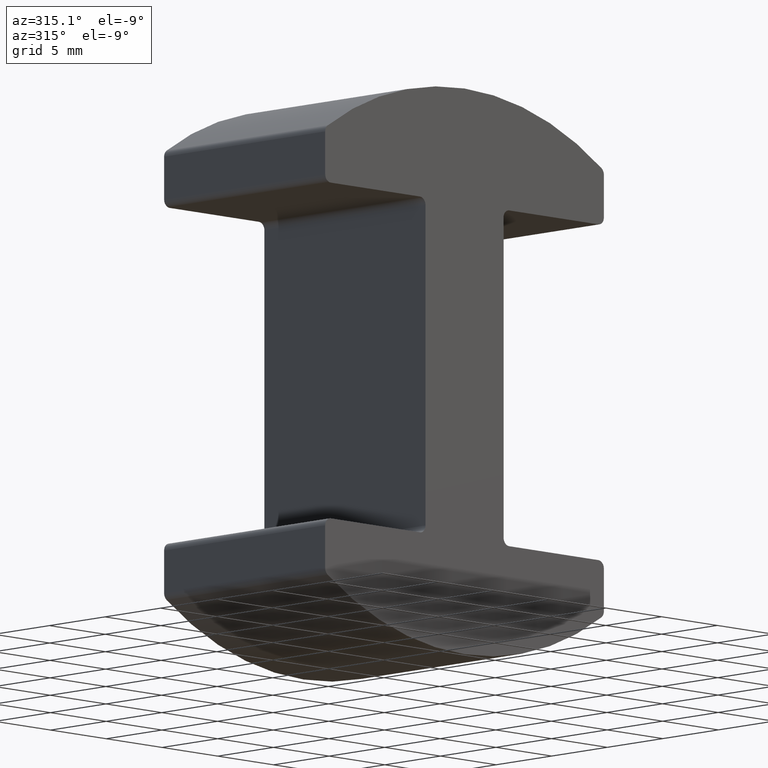
[diagram: clean part render]
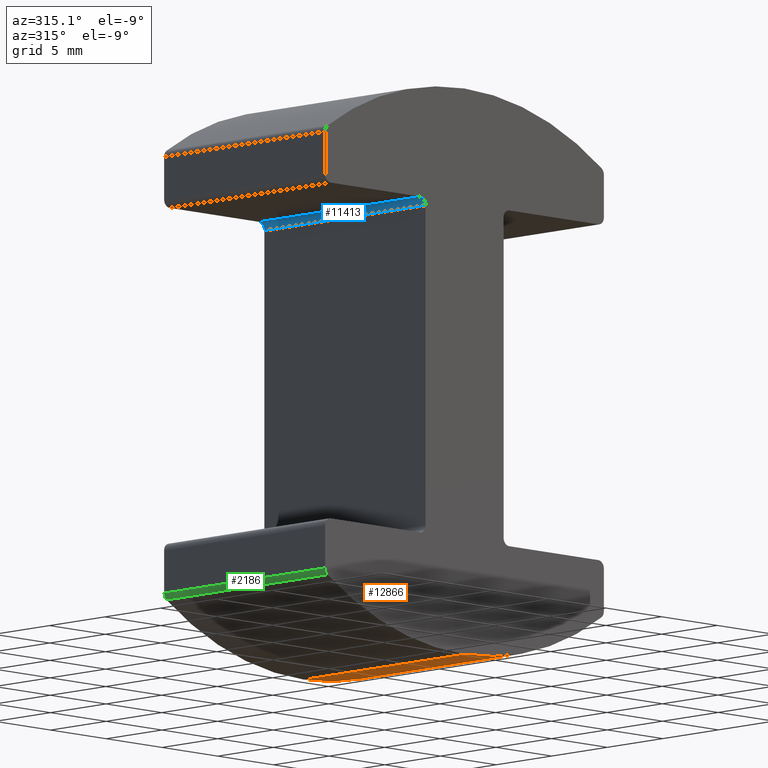
[diagram: same view with three faces highlighted in distinct colors, each labeled with its STEP entity id]
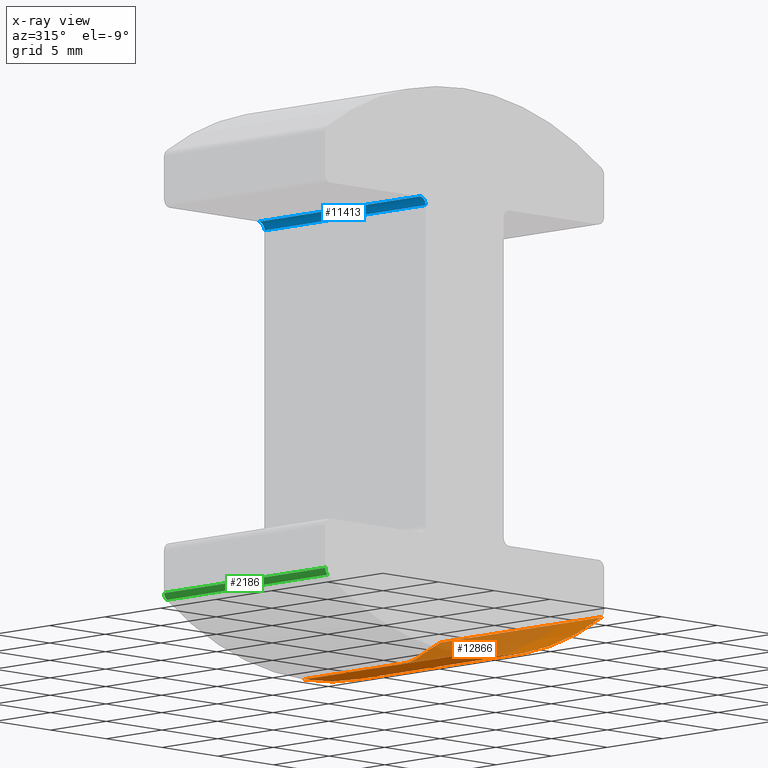
[diagram: x-ray of the same camera — body ghosted, the three highlighted faces saturated]
A machine part, auxiliary view with three faces highlighted in distinct colors.
The next image is the same camera in x-ray (body ghosted, the three faces saturated) — at least one of them is partly hidden behind the body in this view.
Their STEP definitions:

[orange] entity #12866 — the highlighted cylindrical surface (partial cylindrical patch) has radius 22 mm, axis along (-0, -1, -0).
#224 = FACE_OUTER_BOUND ( 'NONE', #13106, .T. ) ;
#270 = VECTOR ( 'NONE', #11596, 1000.000000000000000 ) ;
#1384 = CARTESIAN_POINT ( 'NONE',  ( -3.857428891191241400E-040, -7.250000000000000000, 3.803866990231672000 ) ) ;
#1422 = EDGE_CURVE ( 'NONE', #4289, #2642, #2972, .T. ) ;
#2011 = CARTESIAN_POINT ( 'NONE',  ( -3.857428891191241400E-040, 7.250000000000000000, 3.803866990231672000 ) ) ;
#2630 = CIRCLE ( 'NONE', #6619, 22.00000000000000000 ) ;
#2642 = VERTEX_POINT ( 'NONE', #5754 ) ;
#2744 = LINE ( 'NONE', #11722, #11799 ) ;
#2972 = LINE ( 'NONE', #6457, #270 ) ;
#3037 = DIRECTION ( 'NONE',  ( 0.0000000000000000000, 0.0000000000000000000, -1.000000000000000000 ) ) ;
#3122 = EDGE_CURVE ( 'NONE', #13092, #2642, #2630, .T. ) ;
#3496 = AXIS2_PLACEMENT_3D ( 'NONE', #2011, #12117, #3037 ) ;
#3527 = CIRCLE ( 'NONE', #3496, 22.00000000000000000 ) ;
#4289 = VERTEX_POINT ( 'NONE', #12520 ) ;
#5402 = CYLINDRICAL_SURFACE ( 'NONE', #10764, 22.00000000000000000 ) ;
#5461 = DIRECTION ( 'NONE',  ( 0.0000000000000000000, 0.0000000000000000000, -1.000000000000000000 ) ) ;
#5634 = EDGE_CURVE ( 'NONE', #6374, #4289, #3527, .T. ) ;
#5719 = ORIENTED_EDGE ( 'NONE', *, *, #12968, .F. ) ;
#5754 = CARTESIAN_POINT ( 'NONE',  ( 12.27906976744185900, -7.250000000000000000, -14.45056933758451500 ) ) ;
#6374 = VERTEX_POINT ( 'NONE', #10442 ) ;
#6446 = DIRECTION ( 'NONE',  ( 0.0000000000000000000, 0.0000000000000000000, -1.000000000000000000 ) ) ;
#6457 = CARTESIAN_POINT ( 'NONE',  ( 12.27906976744185700, 7.250000000000000000, -14.45056933758451100 ) ) ;
#6523 = ORIENTED_EDGE ( 'NONE', *, *, #1422, .T. ) ;
#6619 = AXIS2_PLACEMENT_3D ( 'NONE', #1384, #9196, #5461 ) ;
#6918 = DIRECTION ( 'NONE',  ( -0.0000000000000000000, -1.000000000000000000, -0.0000000000000000000 ) ) ;
#9196 = DIRECTION ( 'NONE',  ( -0.0000000000000000000, -1.000000000000000000, 0.0000000000000000000 ) ) ;
#9265 = ORIENTED_EDGE ( 'NONE', *, *, #3122, .F. ) ;
#10017 = ORIENTED_EDGE ( 'NONE', *, *, #5634, .T. ) ;
#10442 = CARTESIAN_POINT ( 'NONE',  ( -3.857428891191241400E-040, 7.250000000000000000, -18.19613300976832800 ) ) ;
#10764 = AXIS2_PLACEMENT_3D ( 'NONE', #12534, #12496, #6446 ) ;
#11596 = DIRECTION ( 'NONE',  ( -0.0000000000000000000, -1.000000000000000000, -0.0000000000000000000 ) ) ;
#11722 = CARTESIAN_POINT ( 'NONE',  ( -3.857428891191241400E-040, 7.250000000000000000, -18.19613300976832800 ) ) ;
#11799 = VECTOR ( 'NONE', #6918, 1000.000000000000000 ) ;
#12117 = DIRECTION ( 'NONE',  ( -0.0000000000000000000, -1.000000000000000000, 0.0000000000000000000 ) ) ;
#12429 = CARTESIAN_POINT ( 'NONE',  ( -3.857428891191241400E-040, -7.250000000000000000, -18.19613300976832800 ) ) ;
#12496 = DIRECTION ( 'NONE',  ( -0.0000000000000000000, -1.000000000000000000, -0.0000000000000000000 ) ) ;
#12520 = CARTESIAN_POINT ( 'NONE',  ( 12.27906976744185900, 7.250000000000000000, -14.45056933758451500 ) ) ;
#12534 = CARTESIAN_POINT ( 'NONE',  ( -3.857428891191241400E-040, 7.250000000000000000, 3.803866990231672000 ) ) ;
#12866 = ADVANCED_FACE ( 'NONE', ( #224 ), #5402, .T. ) ;
#12968 = EDGE_CURVE ( 'NONE', #6374, #13092, #2744, .T. ) ;
#13092 = VERTEX_POINT ( 'NONE', #12429 ) ;
#13106 = EDGE_LOOP ( 'NONE', ( #5719, #10017, #6523, #9265 ) ) ;

[blue] entity #11413 — the highlighted cylindrical surface (edge-blend (fillet) strip) has radius 0.5 mm, axis along (0, 1, 0).
#599 = CARTESIAN_POINT ( 'NONE',  ( -3.999999999999998200, 7.250000000000000000, 10.30000000000000400 ) ) ;
#630 = ORIENTED_EDGE ( 'NONE', *, *, #7300, .F. ) ;
#1425 = CARTESIAN_POINT ( 'NONE',  ( -3.999999999999998200, -7.250000000000000000, 10.80000000000000400 ) ) ;
#2031 = DIRECTION ( 'NONE',  ( 0.0000000000000000000, 1.000000000000000000, 0.0000000000000000000 ) ) ;
#2525 = LINE ( 'NONE', #1425, #11903 ) ;
#2660 = AXIS2_PLACEMENT_3D ( 'NONE', #599, #10816, #7795 ) ;
#3381 = VECTOR ( 'NONE', #8384, 1000.000000000000000 ) ;
#3550 = EDGE_LOOP ( 'NONE', ( #630, #6583, #3879, #10397 ) ) ;
#3579 = AXIS2_PLACEMENT_3D ( 'NONE', #5580, #3749, #7788 ) ;
#3749 = DIRECTION ( 'NONE',  ( 0.0000000000000000000, 1.000000000000000000, -0.0000000000000000000 ) ) ;
#3879 = ORIENTED_EDGE ( 'NONE', *, *, #5839, .F. ) ;
#4294 = EDGE_CURVE ( 'NONE', #5431, #7201, #8776, .T. ) ;
#4518 = CARTESIAN_POINT ( 'NONE',  ( -3.499999999999997800, -7.250000000000000000, 10.30000000000000400 ) ) ;
#5396 = CARTESIAN_POINT ( 'NONE',  ( -3.499999999999997800, 7.250000000000000000, 10.30000000000000400 ) ) ;
#5431 = VERTEX_POINT ( 'NONE', #4518 ) ;
#5580 = CARTESIAN_POINT ( 'NONE',  ( -3.999999999999998200, -7.250000000000000000, 10.30000000000000400 ) ) ;
#5839 = EDGE_CURVE ( 'NONE', #7101, #5431, #7980, .T. ) ;
#6217 = FACE_OUTER_BOUND ( 'NONE', #3550, .T. ) ;
#6583 = ORIENTED_EDGE ( 'NONE', *, *, #4294, .F. ) ;
#6696 = EDGE_CURVE ( 'NONE', #7652, #7101, #2525, .T. ) ;
#6872 = CARTESIAN_POINT ( 'NONE',  ( -3.999999999999998200, 7.250000000000000000, 10.80000000000000400 ) ) ;
#7101 = VERTEX_POINT ( 'NONE', #11118 ) ;
#7165 = CARTESIAN_POINT ( 'NONE',  ( -3.999999999999998200, 7.250000000000000000, 10.30000000000000400 ) ) ;
#7201 = VERTEX_POINT ( 'NONE', #10321 ) ;
#7300 = EDGE_CURVE ( 'NONE', #7201, #7652, #10137, .T. ) ;
#7652 = VERTEX_POINT ( 'NONE', #6872 ) ;
#7788 = DIRECTION ( 'NONE',  ( 0.0000000000000000000, 0.0000000000000000000, -1.000000000000000000 ) ) ;
#7795 = DIRECTION ( 'NONE',  ( 0.0000000000000000000, 0.0000000000000000000, -1.000000000000000000 ) ) ;
#7980 = CIRCLE ( 'NONE', #3579, 0.5000000000000004400 ) ;
#8066 = DIRECTION ( 'NONE',  ( 0.0000000000000000000, 0.0000000000000000000, 1.000000000000000000 ) ) ;
#8384 = DIRECTION ( 'NONE',  ( -0.0000000000000000000, 1.000000000000000000, -0.0000000000000000000 ) ) ;
#8776 = LINE ( 'NONE', #5396, #3381 ) ;
#9669 = DIRECTION ( 'NONE',  ( 0.0000000000000000000, -1.000000000000000000, 0.0000000000000000000 ) ) ;
#10137 = CIRCLE ( 'NONE', #2660, 0.5000000000000004400 ) ;
#10321 = CARTESIAN_POINT ( 'NONE',  ( -3.499999999999997800, 7.250000000000000000, 10.30000000000000400 ) ) ;
#10397 = ORIENTED_EDGE ( 'NONE', *, *, #6696, .F. ) ;
#10816 = DIRECTION ( 'NONE',  ( -0.0000000000000000000, -1.000000000000000000, 0.0000000000000000000 ) ) ;
#11118 = CARTESIAN_POINT ( 'NONE',  ( -3.999999999999998200, -7.250000000000000000, 10.80000000000000400 ) ) ;
#11413 = ADVANCED_FACE ( 'NONE', ( #6217 ), #12269, .F. ) ;
#11903 = VECTOR ( 'NONE', #9669, 1000.000000000000000 ) ;
#12111 = AXIS2_PLACEMENT_3D ( 'NONE', #7165, #2031, #8066 ) ;
#12269 = CYLINDRICAL_SURFACE ( 'NONE', #12111, 0.5000000000000004400 ) ;

[green] entity #2186 — the highlighted cylindrical surface (edge-blend (fillet) strip) has radius 0.5 mm, axis along (-0, -1, -0).
#191 = VERTEX_POINT ( 'NONE', #1241 ) ;
#207 = DIRECTION ( 'NONE',  ( -3.469446951953611000E-015, 0.0000000000000000000, -1.000000000000000000 ) ) ;
#277 = VERTEX_POINT ( 'NONE', #7551 ) ;
#391 = CARTESIAN_POINT ( 'NONE',  ( -12.00000000000000000, 7.250000000000000000, -14.03569578467959500 ) ) ;
#714 = EDGE_CURVE ( 'NONE', #191, #13026, #5004, .T. ) ;
#1241 = CARTESIAN_POINT ( 'NONE',  ( -12.50000000000000000, -7.250000000000000000, -14.03569578467959300 ) ) ;
#1302 = CARTESIAN_POINT ( 'NONE',  ( -12.00000000000000000, -7.250000000000000000, -14.03569578467959500 ) ) ;
#1457 = EDGE_CURVE ( 'NONE', #277, #191, #8171, .T. ) ;
#1890 = AXIS2_PLACEMENT_3D ( 'NONE', #391, #5321, #9463 ) ;
#2186 = ADVANCED_FACE ( 'NONE', ( #12462 ), #9287, .T. ) ;
#2225 = CARTESIAN_POINT ( 'NONE',  ( -12.00000000000000000, 7.250000000000000000, -14.03569578467959500 ) ) ;
#2399 = DIRECTION ( 'NONE',  ( 0.0000000000000000000, 0.0000000000000000000, -1.000000000000000000 ) ) ;
#3025 = CARTESIAN_POINT ( 'NONE',  ( -12.27906976744186300, -7.250000000000000000, -14.45056933758451100 ) ) ;
#4141 = LINE ( 'NONE', #12724, #11328 ) ;
#5004 = CIRCLE ( 'NONE', #5165, 0.5000000000000004400 ) ;
#5165 = AXIS2_PLACEMENT_3D ( 'NONE', #1302, #7445, #2399 ) ;
#5321 = DIRECTION ( 'NONE',  ( -0.0000000000000000000, -1.000000000000000000, -0.0000000000000000000 ) ) ;
#5888 = EDGE_CURVE ( 'NONE', #13026, #10934, #4141, .T. ) ;
#6220 = ORIENTED_EDGE ( 'NONE', *, *, #714, .F. ) ;
#6508 = ORIENTED_EDGE ( 'NONE', *, *, #1457, .F. ) ;
#6916 = CARTESIAN_POINT ( 'NONE',  ( -12.50000000000000000, 7.250000000000000000, -14.03569578467959500 ) ) ;
#7237 = DIRECTION ( 'NONE',  ( 0.0000000000000000000, 1.000000000000000000, -0.0000000000000000000 ) ) ;
#7445 = DIRECTION ( 'NONE',  ( -0.0000000000000000000, -1.000000000000000000, 0.0000000000000000000 ) ) ;
#7551 = CARTESIAN_POINT ( 'NONE',  ( -12.50000000000000000, 7.250000000000000000, -14.03569578467959300 ) ) ;
#7589 = DIRECTION ( 'NONE',  ( 0.0000000000000000000, 1.000000000000000000, 0.0000000000000000000 ) ) ;
#8127 = ORIENTED_EDGE ( 'NONE', *, *, #5888, .F. ) ;
#8171 = LINE ( 'NONE', #6916, #12964 ) ;
#9138 = EDGE_CURVE ( 'NONE', #10934, #277, #9453, .T. ) ;
#9287 = CYLINDRICAL_SURFACE ( 'NONE', #1890, 0.5000000000000004400 ) ;
#9453 = CIRCLE ( 'NONE', #11428, 0.5000000000000004400 ) ;
#9463 = DIRECTION ( 'NONE',  ( 0.0000000000000000000, 0.0000000000000000000, -1.000000000000000000 ) ) ;
#9503 = EDGE_LOOP ( 'NONE', ( #11418, #8127, #6220, #6508 ) ) ;
#9939 = DIRECTION ( 'NONE',  ( 0.0000000000000000000, -1.000000000000000000, 0.0000000000000000000 ) ) ;
#10934 = VERTEX_POINT ( 'NONE', #12039 ) ;
#11328 = VECTOR ( 'NONE', #7589, 1000.000000000000000 ) ;
#11418 = ORIENTED_EDGE ( 'NONE', *, *, #9138, .F. ) ;
#11428 = AXIS2_PLACEMENT_3D ( 'NONE', #2225, #7237, #207 ) ;
#12039 = CARTESIAN_POINT ( 'NONE',  ( -12.27906976744186300, 7.250000000000000000, -14.45056933758451100 ) ) ;
#12462 = FACE_OUTER_BOUND ( 'NONE', #9503, .T. ) ;
#12724 = CARTESIAN_POINT ( 'NONE',  ( -12.27906976744186100, 7.250000000000000000, -14.45056933758451100 ) ) ;
#12964 = VECTOR ( 'NONE', #9939, 1000.000000000000000 ) ;
#13026 = VERTEX_POINT ( 'NONE', #3025 ) ;